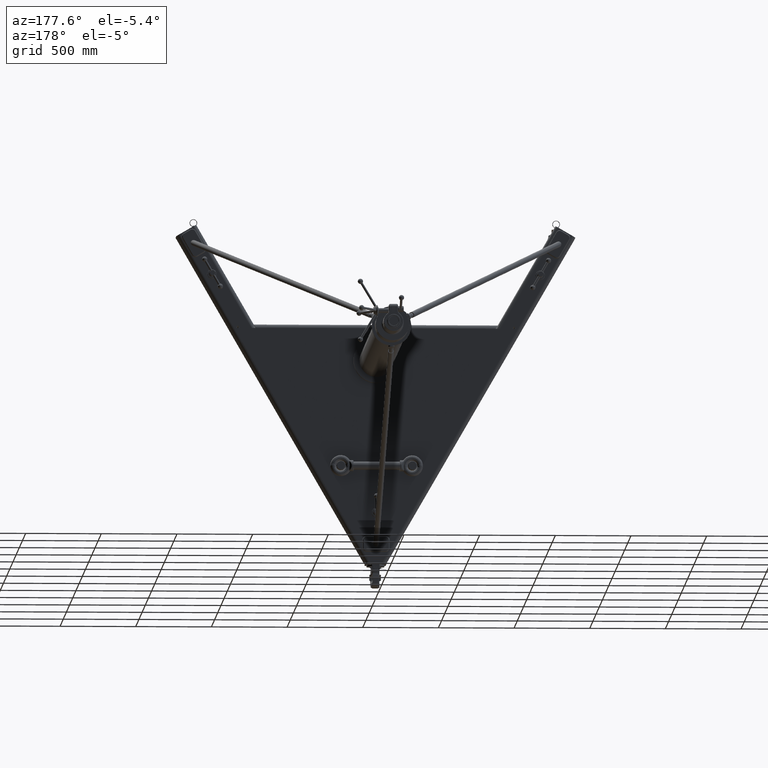
[diagram: clean part render]
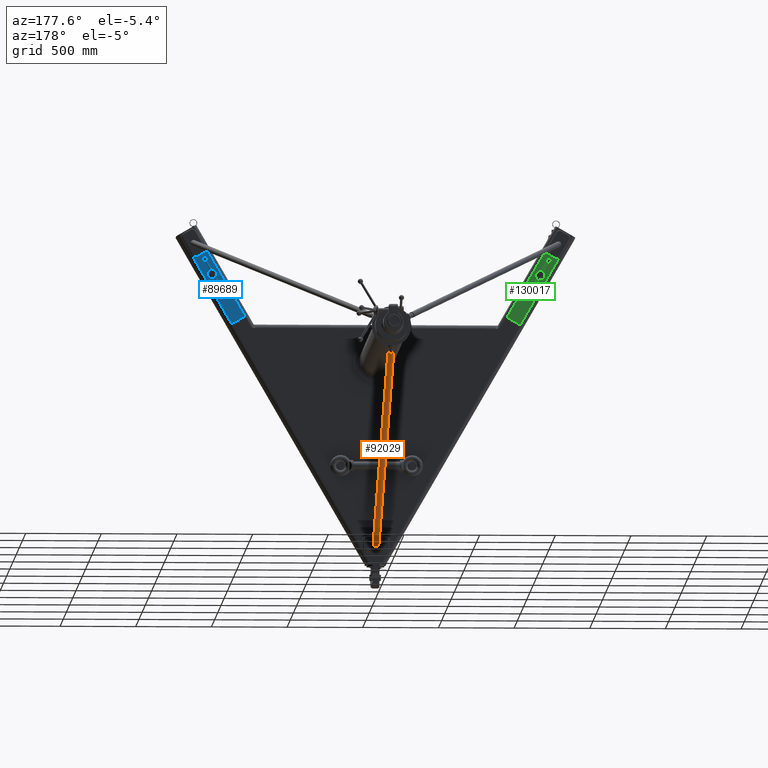
[diagram: same view with three faces highlighted in distinct colors, each labeled with its STEP entity id]
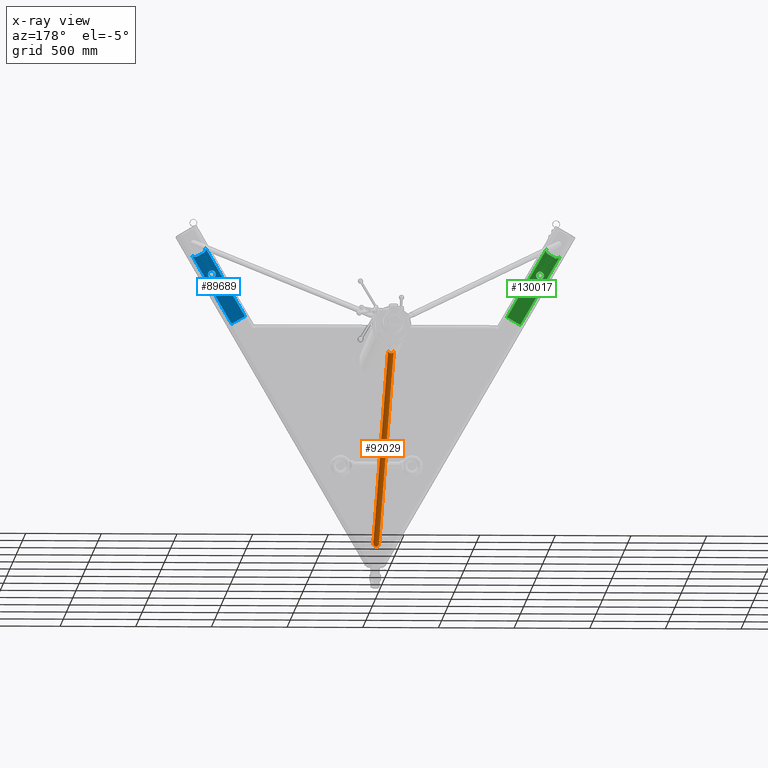
[diagram: x-ray of the same camera — body ghosted, the three highlighted faces saturated]
A machine part, auxiliary view with three faces highlighted in distinct colors.
The next image is the same camera in x-ray (body ghosted, the three faces saturated) — at least one of them is partly hidden behind the body in this view.
Their STEP definitions:

[orange] entity #92029 — the highlighted cylindrical surface (edge-blend (fillet) strip) has radius 19.05 mm, axis along (-0, -0.9109, -0.4127).
#8946 = CARTESIAN_POINT ( 'NONE',  ( -0.7500000000001719735, 4.499999981360616630, -54.29574709607984317 ) ) ;
#13290 = DIRECTION ( 'NONE',  ( -1.456965965755373783E-15, -0.9108638250628473543, -0.4127070294917190574 ) ) ;
#14355 = ORIENTED_EDGE ( 'NONE', *, *, #101378, .F. ) ;
#16134 = VERTEX_POINT ( 'NONE', #76787 ) ;
#18855 = CARTESIAN_POINT ( 'NONE',  ( -0.7500000000001719735, 4.499999981360616630, -54.29574709607984317 ) ) ;
#24966 = CARTESIAN_POINT ( 'NONE',  ( -0.7500000000000250910, 96.39602883161603586, -12.65819816141068443 ) ) ;
#31593 = VERTEX_POINT ( 'NONE', #54235 ) ;
#33541 = VERTEX_POINT ( 'NONE', #18855 ) ;
#37570 = LINE ( 'NONE', #127178, #139555 ) ;
#37947 =( BOUNDED_CURVE ( )  B_SPLINE_CURVE ( 3, ( #8946, #85360, #42756, #129472 ),
 .UNSPECIFIED., .F., .F. ) 
 B_SPLINE_CURVE_WITH_KNOTS ( ( 4, 4 ),
 ( 4.712388980384693227, 7.853981633974486343 ),
 .UNSPECIFIED. ) 
 CURVE ( )  GEOMETRIC_REPRESENTATION_ITEM ( )  RATIONAL_B_SPLINE_CURVE ( ( 1.000000000000000000, 0.3333333333333333703, 0.3333333333333333703, 1.000000000000000000 ) ) 
 REPRESENTATION_ITEM ( '' )  );
#42056 = CARTESIAN_POINT ( 'NONE',  ( -2.498742430400817316E-14, 96.39602883161603586, -12.65819816141068621 ) ) ;
#42756 = CARTESIAN_POINT ( 'NONE',  ( 0.7499999999998270273, 4.499999980795315047, -55.94253551709306294 ) ) ;
#44800 = DIRECTION ( 'NONE',  ( -1.456965965755373586E-15, -0.9108638250628472433, -0.4127070294917189464 ) ) ;
#45312 = EDGE_CURVE ( 'NONE', #16134, #31593, #37570, .T. ) ;
#50526 = ORIENTED_EDGE ( 'NONE', *, *, #126891, .T. ) ;
#54235 = CARTESIAN_POINT ( 'NONE',  ( 0.7499999999998281375, 4.499999981360616630, -54.29574709607984317 ) ) ;
#54992 = AXIS2_PLACEMENT_3D ( 'NONE', #58107, #13290, #66936 ) ;
#58107 = CARTESIAN_POINT ( 'NONE',  ( -2.498742430400817316E-14, 96.39602883161603586, -12.65819816141068621 ) ) ;
#63352 = DIRECTION ( 'NONE',  ( -1.000000000000000000, 0.0000000000000000000, 2.913971193241880372E-15 ) ) ;
#66936 = DIRECTION ( 'NONE',  ( -1.000000000000000000, 0.0000000000000000000, 2.913971193241880372E-15 ) ) ;
#69058 = VECTOR ( 'NONE', #44800, 39.37007874015748854 ) ;
#69826 = CYLINDRICAL_SURFACE ( 'NONE', #54992, 0.7500000000000001110 ) ;
#70003 = ORIENTED_EDGE ( 'NONE', *, *, #77482, .F. ) ;
#71848 = EDGE_LOOP ( 'NONE', ( #50526, #96800, #70003, #14355 ) ) ;
#76787 = CARTESIAN_POINT ( 'NONE',  ( 0.7499999999999750200, 96.39602883161603586, -12.65819816141068799 ) ) ;
#77482 = EDGE_CURVE ( 'Defeatured_10225+Defeatured_1020+Defeatured_1020+Defeatured_1020', #33541, #31593, #37947, .T. ) ;
#78562 = CARTESIAN_POINT ( 'NONE',  ( -0.7500000000000250910, 96.39602883161603586, -12.65819816141068443 ) ) ;
#81635 = DIRECTION ( 'NONE',  ( -1.456965965755373586E-15, -0.9108638250628472433, -0.4127070294917189464 ) ) ;
#85360 = CARTESIAN_POINT ( 'NONE',  ( -0.7500000000001730838, 4.499999980795315047, -55.94253551709306294 ) ) ;
#92029 = ADVANCED_FACE ( 'Defeatured_1020', ( #135983 ), #69826, .T. ) ;
#92679 = VERTEX_POINT ( 'NONE', #24966 ) ;
#96800 = ORIENTED_EDGE ( 'NONE', *, *, #45312, .T. ) ;
#100623 = LINE ( 'NONE', #78562, #69058 ) ;
#101378 = EDGE_CURVE ( 'NONE', #92679, #33541, #100623, .T. ) ;
#107800 = AXIS2_PLACEMENT_3D ( 'NONE', #42056, #111055, #63352 ) ;
#110205 = CIRCLE ( 'NONE', #107800, 0.7500000000000001110 ) ;
#111055 = DIRECTION ( 'NONE',  ( -1.456965965755373783E-15, -0.9108638250628473543, -0.4127070294917190574 ) ) ;
#126891 = EDGE_CURVE ( 'Defeatured_1020+Defeatured_1021+Defeatured_1021+Defeatured_1021', #92679, #16134, #110205, .T. ) ;
#127178 = CARTESIAN_POINT ( 'NONE',  ( 0.7499999999999750200, 96.39602883161603586, -12.65819816141068799 ) ) ;
#129472 = CARTESIAN_POINT ( 'NONE',  ( 0.7499999999998281375, 4.499999981360616630, -54.29574709607984317 ) ) ;
#135983 = FACE_OUTER_BOUND ( 'NONE', #71848, .T. ) ;
#139555 = VECTOR ( 'NONE', #81635, 39.37007874015748854 ) ;

[blue] entity #89689 — the highlighted planar face has unit normal (0, -1, 0).
#2456 = ORIENTED_EDGE ( 'NONE', *, *, #75479, .T. ) ;
#2521 = EDGE_CURVE ( 'Defeatured_1512+Defeatured_15193+Defeatured_15193+Defeatured_15193', #41553, #8509, #46262, .T. ) ;
#2820 = DIRECTION ( 'NONE',  ( 1.575794260785529087E-16, -1.000000000000000000, 2.213492840780712448E-16 ) ) ;
#2891 = DIRECTION ( 'NONE',  ( 0.8660254037844382635, 2.579314405876306734E-17, -0.5000000000000006661 ) ) ;
#3186 = ORIENTED_EDGE ( 'NONE', *, *, #68979, .F. ) ;
#4196 = DIRECTION ( 'NONE',  ( 0.8660254037844399289, 2.579314405876399795E-17, -0.4999999999999976685 ) ) ;
#4865 = LINE ( 'NONE', #106209, #30520 ) ;
#6821 = LINE ( 'NONE', #96426, #124992 ) ;
#8162 = CIRCLE ( 'NONE', #19915, 0.9999999999999992228 ) ;
#8509 = VERTEX_POINT ( 'NONE', #12430 ) ;
#12430 = CARTESIAN_POINT ( 'NONE',  ( 46.51451270035051522, 2.999999999999997335, 20.57288614778306268 ) ) ;
#12729 = AXIS2_PLACEMENT_3D ( 'NONE', #40141, #59997, #4196 ) ;
#17271 = VERTEX_POINT ( 'NONE', #73191 ) ;
#17832 = ORIENTED_EDGE ( 'NONE', *, *, #144149, .T. ) ;
#19616 = VECTOR ( 'NONE', #2891, 39.37007874015748143 ) ;
#19915 = AXIS2_PLACEMENT_3D ( 'NONE', #106775, #118514, #141280 ) ;
#24137 = DIRECTION ( 'NONE',  ( 0.0000000000000000000, 0.0000000000000000000, -1.000000000000000000 ) ) ;
#30520 = VECTOR ( 'NONE', #95186, 39.37007874015748143 ) ;
#34848 = VERTEX_POINT ( 'NONE', #49232 ) ;
#35963 = CARTESIAN_POINT ( 'NONE',  ( 46.51451270009354033, 2.999999999999997335, 20.57288614793142756 ) ) ;
#37879 = AXIS2_PLACEMENT_3D ( 'NONE', #49086, #2820, #24137 ) ;
#37964 = PLANE ( 'NONE',  #12729 ) ;
#38427 = VECTOR ( 'NONE', #121619, 39.37007874015748854 ) ;
#38847 = EDGE_CURVE ( 'Defeatured_1512+Defeatured_15195+Defeatured_15193+Defeatured_15118', #17271, #51803, #6821, .T. ) ;
#40141 = CARTESIAN_POINT ( 'NONE',  ( 51.04903810567644484, 2.999999999999999556, 26.42691453623952214 ) ) ;
#40612 = DIRECTION ( 'NONE',  ( -0.4999999999999976685, -2.704838161603844273E-16, -0.8660254037844399289 ) ) ;
#40664 = EDGE_CURVE ( 'Defeatured_1512+Defeatured_151204+Defeatured_151204+Defeatured_151204', #102044, #70912, #138923, .T. ) ;
#41553 = VERTEX_POINT ( 'NONE', #45551 ) ;
#45278 = ORIENTED_EDGE ( 'NONE', *, *, #38847, .T. ) ;
#45551 = CARTESIAN_POINT ( 'NONE',  ( 44.78246189239613528, 2.999999999999997335, 21.57288614800562954 ) ) ;
#46262 = LINE ( 'NONE', #35963, #19616 ) ;
#49086 = CARTESIAN_POINT ( 'NONE',  ( 47.01451270035050101, 2.999999999999998224, 21.43891155156750727 ) ) ;
#49232 = CARTESIAN_POINT ( 'NONE',  ( 34.08493649053875174, 2.999999999999991562, 5.044228634059630956 ) ) ;
#51803 = VERTEX_POINT ( 'NONE', #108581 ) ;
#57161 = ORIENTED_EDGE ( 'NONE', *, *, #40664, .T. ) ;
#59997 = DIRECTION ( 'NONE',  ( 1.575794260785529087E-16, -1.000000000000000000, 2.213492840780712202E-16 ) ) ;
#68091 = ORIENTED_EDGE ( 'NONE', *, *, #88699, .F. ) ;
#68979 = EDGE_CURVE ( 'Defeatured_15118+Defeatured_1512+Defeatured_15143+Defeatured_15144', #34848, #51803, #4865, .T. ) ;
#70658 = CIRCLE ( 'NONE', #37879, 0.9999999999999992228 ) ;
#70912 = VERTEX_POINT ( 'NONE', #93929 ) ;
#71693 = CARTESIAN_POINT ( 'NONE',  ( 42.69198729810757698, 2.999999999999996003, 15.95207793609570857 ) ) ;
#72422 = DIRECTION ( 'NONE',  ( 1.575794260785529087E-16, -1.000000000000000000, 2.213492840780712448E-16 ) ) ;
#73191 = CARTESIAN_POINT ( 'NONE',  ( 47.88053810490568907, 2.999999999999998224, 20.93891155112251212 ) ) ;
#73550 = DIRECTION ( 'NONE',  ( 0.0000000000000000000, 0.0000000000000000000, -1.000000000000000000 ) ) ;
#75479 = EDGE_CURVE ( 'Defeatured_1512+Defeatured_15193+Defeatured_15196+Defeatured_15193', #93412, #41553, #135584, .T. ) ;
#75889 = AXIS2_PLACEMENT_3D ( 'NONE', #71693, #72422, #115070 ) ;
#83483 = CARTESIAN_POINT ( 'NONE',  ( 44.41643648976791781, 2.999999999999996891, 22.93891155112246594 ) ) ;
#85295 = CARTESIAN_POINT ( 'NONE',  ( 45.28246189278162603, 2.999999999999998224, 22.43891155156746109 ) ) ;
#87808 = CARTESIAN_POINT ( 'NONE',  ( 47.58493649053869490, 2.999999999999998668, 28.42691453623951148 ) ) ;
#88699 = EDGE_CURVE ( 'Defeatured_15196+Defeatured_1512+Defeatured_15193+Defeatured_15143', #93412, #34848, #131929, .T. ) ;
#89689 = ADVANCED_FACE ( 'Defeatured_1512', ( #116551, #138597 ), #37964, .F. ) ;
#93282 = AXIS2_PLACEMENT_3D ( 'NONE', #85295, #130138, #73550 ) ;
#93318 = CARTESIAN_POINT ( 'NONE',  ( 42.19198729810757698, 2.999999999999996003, 15.08605253231126753 ) ) ;
#93412 = VERTEX_POINT ( 'NONE', #83483 ) ;
#93929 = CARTESIAN_POINT ( 'NONE',  ( 43.19198729810757698, 2.999999999999996003, 16.81810333988014960 ) ) ;
#95186 = DIRECTION ( 'NONE',  ( 0.8660254037844397068, 1.737310692789979645E-16, -0.4999999999999980016 ) ) ;
#96426 = CARTESIAN_POINT ( 'NONE',  ( 51.04903810567644484, 2.999999999999999556, 26.42691453623952214 ) ) ;
#102044 = VERTEX_POINT ( 'NONE', #93318 ) ;
#103315 = ORIENTED_EDGE ( 'NONE', *, *, #135544, .T. ) ;
#106209 = CARTESIAN_POINT ( 'NONE',  ( 37.54903810567651590, 2.999999999999997335, 3.044228634059715777 ) ) ;
#106775 = CARTESIAN_POINT ( 'NONE',  ( 42.69198729810757698, 2.999999999999996003, 15.95207793609570857 ) ) ;
#108581 = CARTESIAN_POINT ( 'NONE',  ( 37.54903810567651590, 2.999999999999992450, 3.044228634059640726 ) ) ;
#115070 = DIRECTION ( 'NONE',  ( 0.0000000000000000000, 0.0000000000000000000, -1.000000000000000000 ) ) ;
#115951 = EDGE_LOOP ( 'NONE', ( #17832, #57161 ) ) ;
#116551 = FACE_BOUND ( 'NONE', #115951, .T. ) ;
#118174 = ORIENTED_EDGE ( 'NONE', *, *, #2521, .T. ) ;
#118514 = DIRECTION ( 'NONE',  ( 1.575794260785529087E-16, -1.000000000000000000, 2.213492840780712448E-16 ) ) ;
#121619 = DIRECTION ( 'NONE',  ( -0.4999999999999976685, -2.704838161603844273E-16, -0.8660254037844399289 ) ) ;
#124559 = EDGE_LOOP ( 'NONE', ( #68091, #2456, #118174, #103315, #45278, #3186 ) ) ;
#124992 = VECTOR ( 'NONE', #40612, 39.37007874015748854 ) ;
#130138 = DIRECTION ( 'NONE',  ( 1.575794260785529087E-16, -1.000000000000000000, 2.213492840780712448E-16 ) ) ;
#131929 = LINE ( 'NONE', #87808, #38427 ) ;
#135544 = EDGE_CURVE ( 'Defeatured_1512+Defeatured_15193+Defeatured_15193+Defeatured_15195', #8509, #17271, #70658, .T. ) ;
#135584 = CIRCLE ( 'NONE', #93282, 0.9999999999999992228 ) ;
#138597 = FACE_OUTER_BOUND ( 'NONE', #124559, .T. ) ;
#138923 = CIRCLE ( 'NONE', #75889, 0.9999999999999992228 ) ;
#141280 = DIRECTION ( 'NONE',  ( 0.0000000000000000000, 0.0000000000000000000, -1.000000000000000000 ) ) ;
#144149 = EDGE_CURVE ( 'Defeatured_1512+Defeatured_151204+Defeatured_151204+Defeatured_151204', #70912, #102044, #8162, .T. ) ;

[green] entity #130017 — the highlighted planar face has unit normal (-0, -1, -0).
#2452 = ORIENTED_EDGE ( 'NONE', *, *, #55282, .T. ) ;
#7845 = VERTEX_POINT ( 'NONE', #65703 ) ;
#10540 = VERTEX_POINT ( 'NONE', #104581 ) ;
#11088 = AXIS2_PLACEMENT_3D ( 'NONE', #68840, #13761, #25509 ) ;
#13761 = DIRECTION ( 'NONE',  ( -2.067179042643000289E-16, -1.000000000000000000, -1.165628589420324524E-16 ) ) ;
#14606 = VERTEX_POINT ( 'NONE', #86430 ) ;
#15075 = EDGE_CURVE ( 'Defeatured_1515+Defeatured_151213+Defeatured_151213+Defeatured_151215', #41135, #14606, #140483, .T. ) ;
#16223 = ORIENTED_EDGE ( 'NONE', *, *, #15075, .T. ) ;
#17647 = DIRECTION ( 'NONE',  ( 0.8660254037844393737, -2.373043859809794785E-16, 0.4999999999999986677 ) ) ;
#19986 = EDGE_CURVE ( 'Defeatured_1515+Defeatured_151213+Defeatured_151216+Defeatured_151213', #71080, #7845, #105858, .T. ) ;
#21791 = LINE ( 'NONE', #31366, #100567 ) ;
#25509 = DIRECTION ( 'NONE',  ( 1.000000000000000000, 0.0000000000000000000, 0.0000000000000000000 ) ) ;
#26545 = EDGE_CURVE ( 'Defeatured_15117+Defeatured_1515+Defeatured_15137+Defeatured_15138', #10540, #59641, #36726, .T. ) ;
#26832 = EDGE_LOOP ( 'NONE', ( #113748, #131573, #71972, #16223, #40049, #67962 ) ) ;
#31366 = CARTESIAN_POINT ( 'NONE',  ( -44.78246189432313429, 2.999999999999498179, 21.57288614867322352 ) ) ;
#31671 = VERTEX_POINT ( 'NONE', #46113 ) ;
#32675 = CARTESIAN_POINT ( 'NONE',  ( -51.04903810567643774, 2.999999999999497735, 26.42691453623961451 ) ) ;
#33239 = AXIS2_PLACEMENT_3D ( 'NONE', #118991, #60983, #17647 ) ;
#33942 = AXIS2_PLACEMENT_3D ( 'NONE', #121701, #82468, #103814 ) ;
#36726 = LINE ( 'NONE', #48462, #97020 ) ;
#40049 = ORIENTED_EDGE ( 'NONE', *, *, #107119, .T. ) ;
#41135 = VERTEX_POINT ( 'NONE', #132620 ) ;
#46113 = CARTESIAN_POINT ( 'NONE',  ( -42.19198729810760540, 2.999999999999498179, 15.08605253231134036 ) ) ;
#48462 = CARTESIAN_POINT ( 'NONE',  ( -34.08493649053871621, 2.999999999999496847, 5.044228634059743754 ) ) ;
#49214 = DIRECTION ( 'NONE',  ( 0.4999999999999986677, -2.412555150607432556E-18, -0.8660254037844393737 ) ) ;
#51176 = CARTESIAN_POINT ( 'NONE',  ( -43.19198729810759829, 2.999999999999498179, 16.81810333988022066 ) ) ;
#51770 = DIRECTION ( 'NONE',  ( -2.067179042643000289E-16, -1.000000000000000000, -1.165628589420324524E-16 ) ) ;
#55282 = EDGE_CURVE ( 'Defeatured_1515+Defeatured_151324+Defeatured_151324+Defeatured_151324', #74928, #31671, #125363, .T. ) ;
#56954 = EDGE_CURVE ( 'Defeatured_151216+Defeatured_1515+Defeatured_151213+Defeatured_15137', #71080, #10540, #64995, .T. ) ;
#59641 = VERTEX_POINT ( 'NONE', #112817 ) ;
#60983 = DIRECTION ( 'NONE',  ( -2.067179042642999303E-16, -1.000000000000000000, -1.165628589420324031E-16 ) ) ;
#64995 = LINE ( 'NONE', #32675, #97145 ) ;
#65703 = CARTESIAN_POINT ( 'NONE',  ( -46.51451270189200216, 2.999999999999498623, 20.57288614867323417 ) ) ;
#67962 = ORIENTED_EDGE ( 'NONE', *, *, #26545, .F. ) ;
#68556 = DIRECTION ( 'NONE',  ( 1.000000000000000000, 0.0000000000000000000, 0.0000000000000000000 ) ) ;
#68840 = CARTESIAN_POINT ( 'NONE',  ( -42.69198729810760540, 2.999999999999498179, 15.95207793609577962 ) ) ;
#71080 = VERTEX_POINT ( 'NONE', #118157 ) ;
#71972 = ORIENTED_EDGE ( 'NONE', *, *, #125589, .T. ) ;
#71987 = FACE_BOUND ( 'NONE', #104628, .T. ) ;
#74168 = FACE_OUTER_BOUND ( 'NONE', #26832, .T. ) ;
#74673 = EDGE_CURVE ( 'Defeatured_1515+Defeatured_151324+Defeatured_151324+Defeatured_151324', #31671, #74928, #142480, .T. ) ;
#74928 = VERTEX_POINT ( 'NONE', #51176 ) ;
#76883 = DIRECTION ( 'NONE',  ( 0.8660254037844393737, -2.373043859809795771E-16, 0.4999999999999985567 ) ) ;
#79928 = ORIENTED_EDGE ( 'NONE', *, *, #74673, .T. ) ;
#82468 = DIRECTION ( 'NONE',  ( -2.067179042643000289E-16, -1.000000000000000000, -1.165628589420324524E-16 ) ) ;
#86430 = CARTESIAN_POINT ( 'NONE',  ( -44.41643649053870035, 2.999999999999497735, 22.93891155245764324 ) ) ;
#93982 = LINE ( 'NONE', #115318, #104816 ) ;
#96216 = PLANE ( 'NONE',  #33239 ) ;
#97020 = VECTOR ( 'NONE', #124866, 39.37007874015748143 ) ;
#97145 = VECTOR ( 'NONE', #108355, 39.37007874015748854 ) ;
#97289 = CARTESIAN_POINT ( 'NONE',  ( -45.28246189432314850, 2.999999999999498179, 22.43891155245765745 ) ) ;
#99468 = CARTESIAN_POINT ( 'NONE',  ( -47.01451270189198084, 2.999999999999498179, 21.43891155245762903 ) ) ;
#100567 = VECTOR ( 'NONE', #76883, 39.37007874015748854 ) ;
#103656 = AXIS2_PLACEMENT_3D ( 'NONE', #99468, #124405, #68556 ) ;
#103814 = DIRECTION ( 'NONE',  ( 1.000000000000000000, 0.0000000000000000000, 0.0000000000000000000 ) ) ;
#104581 = CARTESIAN_POINT ( 'NONE',  ( -37.54903810567646616, 2.999999999999497735, 3.044228634059747307 ) ) ;
#104628 = EDGE_LOOP ( 'NONE', ( #2452, #79928 ) ) ;
#104816 = VECTOR ( 'NONE', #49214, 39.37007874015748854 ) ;
#105344 = AXIS2_PLACEMENT_3D ( 'NONE', #97289, #51770, #121496 ) ;
#105858 = CIRCLE ( 'NONE', #103656, 1.000000000000003553 ) ;
#107119 = EDGE_CURVE ( 'Defeatured_1515+Defeatured_151215+Defeatured_151213+Defeatured_15117', #14606, #59641, #93982, .T. ) ;
#108355 = DIRECTION ( 'NONE',  ( 0.4999999999999986677, -2.412555150607432556E-18, -0.8660254037844393737 ) ) ;
#112817 = CARTESIAN_POINT ( 'NONE',  ( -34.08493649053871621, 2.999999999999497735, 5.044228634059741978 ) ) ;
#113748 = ORIENTED_EDGE ( 'NONE', *, *, #56954, .F. ) ;
#115318 = CARTESIAN_POINT ( 'NONE',  ( -47.58493649053868069, 2.999999999999497735, 28.42691453623960740 ) ) ;
#118157 = CARTESIAN_POINT ( 'NONE',  ( -47.88053810567644319, 2.999999999999497735, 20.93891155245761126 ) ) ;
#118991 = CARTESIAN_POINT ( 'NONE',  ( -47.58493649053868069, 2.999999999999497735, 28.42691453623960740 ) ) ;
#121496 = DIRECTION ( 'NONE',  ( 1.000000000000000000, 0.0000000000000000000, 0.0000000000000000000 ) ) ;
#121701 = CARTESIAN_POINT ( 'NONE',  ( -42.69198729810760540, 2.999999999999498179, 15.95207793609577962 ) ) ;
#124405 = DIRECTION ( 'NONE',  ( -2.067179042643000289E-16, -1.000000000000000000, -1.165628589420324524E-16 ) ) ;
#124866 = DIRECTION ( 'NONE',  ( 0.8660254037844397068, -3.258225410397631682E-16, 0.4999999999999980016 ) ) ;
#125363 = CIRCLE ( 'NONE', #33942, 1.000000000000003553 ) ;
#125589 = EDGE_CURVE ( 'Defeatured_1515+Defeatured_151213+Defeatured_151213+Defeatured_151213', #7845, #41135, #21791, .T. ) ;
#130017 = ADVANCED_FACE ( 'Defeatured_1515', ( #71987, #74168 ), #96216, .F. ) ;
#131573 = ORIENTED_EDGE ( 'NONE', *, *, #19986, .T. ) ;
#132620 = CARTESIAN_POINT ( 'NONE',  ( -44.78246189432311297, 2.999999999999498179, 21.57288614867323417 ) ) ;
#140483 = CIRCLE ( 'NONE', #105344, 0.9999999999999947820 ) ;
#142480 = CIRCLE ( 'NONE', #11088, 1.000000000000003553 ) ;